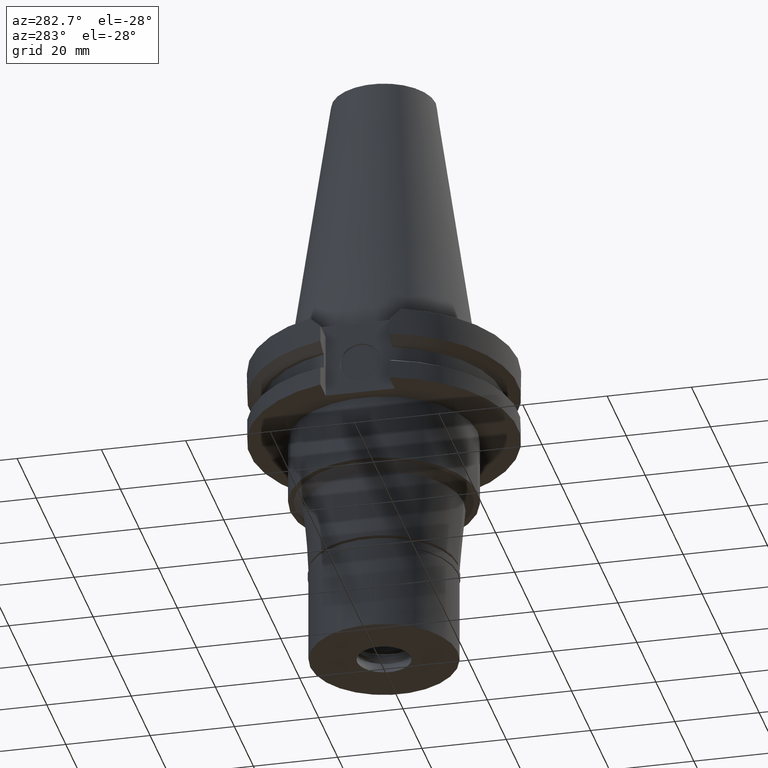
[diagram: clean part render]
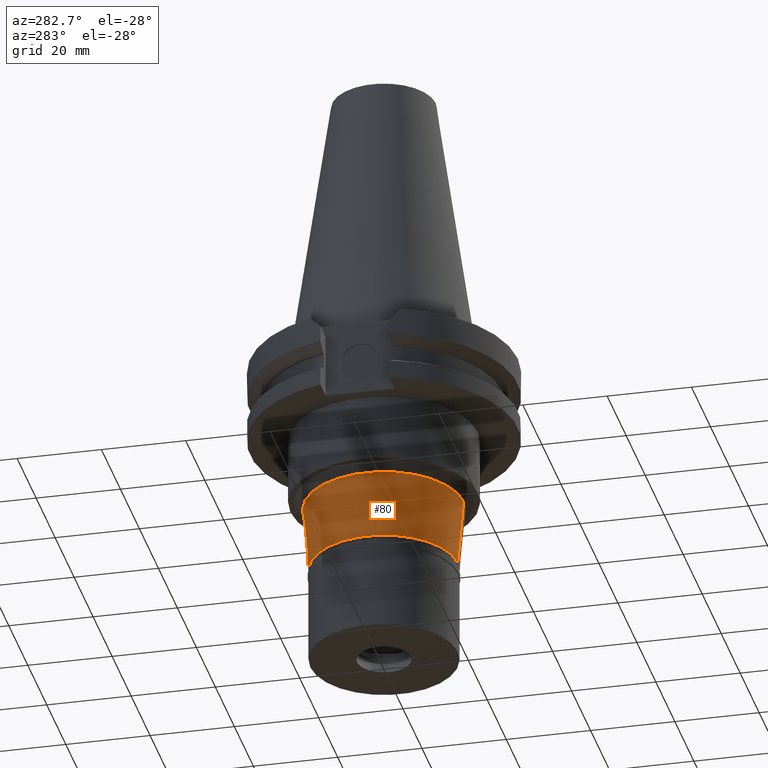
[diagram: same view with one face highlighted and labeled with its STEP entity id]
A machine part, auxiliary view. The second image highlights one B-rep face of the part: STEP entity #80.
In plain terms, the highlighted conical surface has half-angle 5 deg.
Its self-contained STEP definition (entity closure, byte-faithful):
#80 = ADVANCED_FACE ( 'NONE', ( #1562 ), #2685, .T. ) ;
#96 = CARTESIAN_POINT ( 'NONE',  ( 0.0000000000000000000, 0.0000000000000000000, -37.00000000000000000 ) ) ;
#115 = VECTOR ( 'NONE', #602, 1000.000000000000114 ) ;
#136 = AXIS2_PLACEMENT_3D ( 'NONE', #1460, #2536, #3027 ) ;
#206 = VERTEX_POINT ( 'NONE', #1682 ) ;
#356 = DIRECTION ( 'NONE',  ( 0.0000000000000000000, -1.000000000000000000, 0.0000000000000000000 ) ) ;
#569 = VERTEX_POINT ( 'NONE', #1214 ) ;
#602 = DIRECTION ( 'NONE',  ( 0.0000000000000000000, -0.08715574274759568807, -0.9961946980917509853 ) ) ;
#746 = DIRECTION ( 'NONE',  ( 0.0000000000000000000, 1.000000000000000000, 0.0000000000000000000 ) ) ;
#849 = DIRECTION ( 'NONE',  ( 0.0000000000000000000, 0.0000000000000000000, -1.000000000000000000 ) ) ;
#913 = DIRECTION ( 'NONE',  ( 0.0000000000000000000, 0.08715574274759568807, -0.9961946980917509853 ) ) ;
#954 = VERTEX_POINT ( 'NONE', #2444 ) ;
#962 = ORIENTED_EDGE ( 'NONE', *, *, #1330, .F. ) ;
#1062 = CARTESIAN_POINT ( 'NONE',  ( 0.0000000000000000000, 0.0000000000000000000, -44.94999999999999574 ) ) ;
#1152 = LINE ( 'NONE', #2521, #1338 ) ;
#1214 = CARTESIAN_POINT ( 'NONE',  ( 0.0000000000000000000, -18.89106975006000155, -37.00000000000000000 ) ) ;
#1221 = EDGE_CURVE ( 'NONE', #2751, #954, #2405, .T. ) ;
#1330 = EDGE_CURVE ( 'NONE', #569, #206, #1152, .T. ) ;
#1338 = VECTOR ( 'NONE', #913, 1000.000000000000114 ) ;
#1352 = EDGE_CURVE ( 'NONE', #954, #206, #2280, .T. ) ;
#1460 = CARTESIAN_POINT ( 'NONE',  ( 0.0000000000000000000, 0.0000000000000000000, -52.90000000000000568 ) ) ;
#1562 = FACE_OUTER_BOUND ( 'NONE', #2414, .T. ) ;
#1682 = CARTESIAN_POINT ( 'NONE',  ( 0.0000000000000000000, -17.50000000000000000, -52.90000000000000568 ) ) ;
#1863 = CARTESIAN_POINT ( 'NONE',  ( 0.0000000000000000000, 18.89106975006000155, -37.00000000000000000 ) ) ;
#1896 = AXIS2_PLACEMENT_3D ( 'NONE', #96, #849, #356 ) ;
#2001 = ORIENTED_EDGE ( 'NONE', *, *, #2748, .T. ) ;
#2029 = ORIENTED_EDGE ( 'NONE', *, *, #1221, .T. ) ;
#2280 = CIRCLE ( 'NONE', #136, 17.50000000000000000 ) ;
#2290 = ORIENTED_EDGE ( 'NONE', *, *, #1352, .T. ) ;
#2390 = CARTESIAN_POINT ( 'NONE',  ( 0.0000000000000000000, 18.89106975006000155, -37.00000000000000000 ) ) ;
#2405 = LINE ( 'NONE', #2390, #115 ) ;
#2414 = EDGE_LOOP ( 'NONE', ( #2290, #962, #2001, #2029 ) ) ;
#2444 = CARTESIAN_POINT ( 'NONE',  ( 0.0000000000000000000, 17.50000000000000000, -52.90000000000000568 ) ) ;
#2521 = CARTESIAN_POINT ( 'NONE',  ( 0.0000000000000000000, -18.89106975006000155, -37.00000000000000000 ) ) ;
#2536 = DIRECTION ( 'NONE',  ( 0.0000000000000000000, 0.0000000000000000000, 1.000000000000000000 ) ) ;
#2685 = CONICAL_SURFACE ( 'NONE', #3170, 18.19553487502999900, 0.08726646259969973729 ) ;
#2748 = EDGE_CURVE ( 'NONE', #569, #2751, #3299, .T. ) ;
#2751 = VERTEX_POINT ( 'NONE', #1863 ) ;
#3027 = DIRECTION ( 'NONE',  ( 0.0000000000000000000, 1.000000000000000000, 0.0000000000000000000 ) ) ;
#3143 = DIRECTION ( 'NONE',  ( 0.0000000000000000000, 0.0000000000000000000, 1.000000000000000000 ) ) ;
#3170 = AXIS2_PLACEMENT_3D ( 'NONE', #1062, #3143, #746 ) ;
#3299 = CIRCLE ( 'NONE', #1896, 18.89106975006000155 ) ;